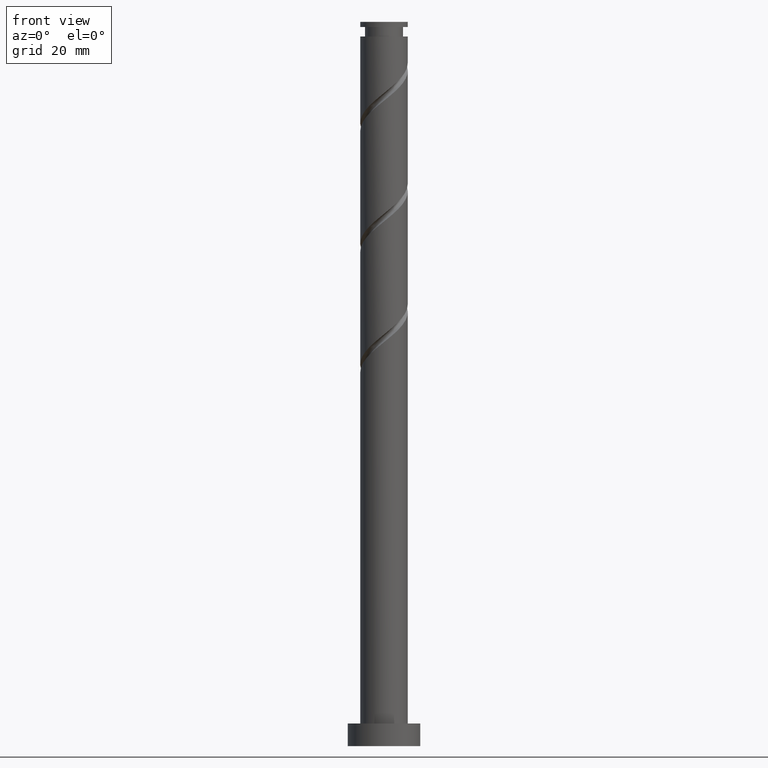
[diagram: clean part render]
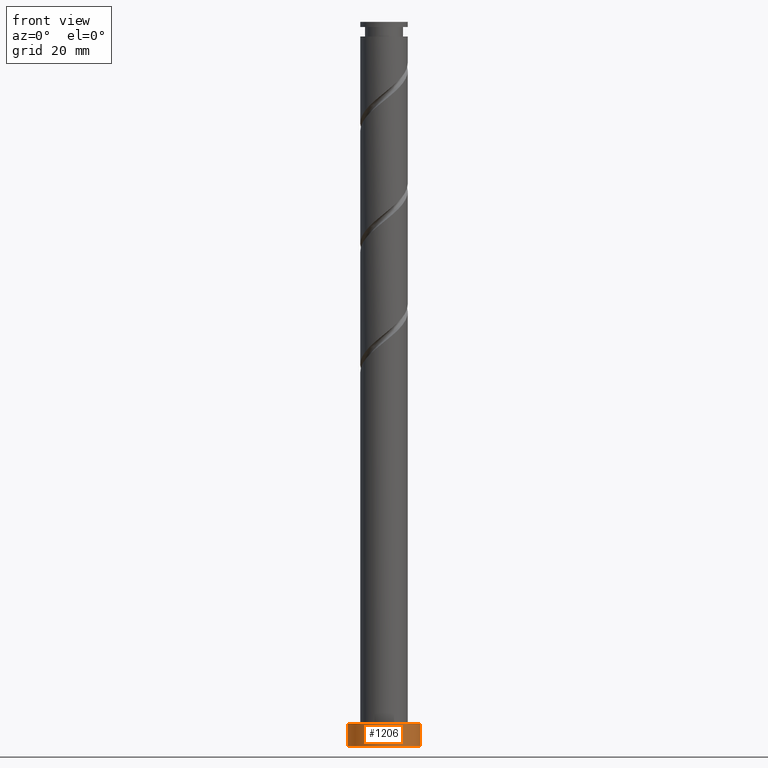
[diagram: same view with one face highlighted and labeled with its STEP entity id]
A machine part, front view. The second image highlights one B-rep face of the part: STEP entity #1206.
In plain terms, the highlighted cylindrical surface (edge-blend (fillet) strip) has radius 8 mm, axis along (-0, -0, -1).
Its self-contained STEP definition (entity closure, byte-faithful):
#36 = VERTEX_POINT ( 'NONE', #1400 ) ;
#121 = DIRECTION ( 'NONE',  ( -1.000000000000000000, 0.000000000000000000, 0.000000000000000000 ) ) ;
#123 = VERTEX_POINT ( 'NONE', #1104 ) ;
#156 = EDGE_CURVE ( 'NONE', #123, #1064, #400, .T. ) ;
#180 = CARTESIAN_POINT ( 'NONE',  ( 8.000000000000000000, 9.797174393178825657E-16, 5.000000000000000000 ) ) ;
#192 = DIRECTION ( 'NONE',  ( 0.000000000000000000, 0.000000000000000000, 1.000000000000000000 ) ) ;
#228 = DIRECTION ( 'NONE',  ( -0.000000000000000000, -0.000000000000000000, -1.000000000000000000 ) ) ;
#244 = FACE_OUTER_BOUND ( 'NONE', #472, .T. ) ;
#303 = ORIENTED_EDGE ( 'NONE', *, *, #850, .F. ) ;
#361 = CYLINDRICAL_SURFACE ( 'NONE', #1541, 8.000000000000000000 ) ;
#400 = CIRCLE ( 'NONE', #612, 8.000000000000000000 ) ;
#458 = VECTOR ( 'NONE', #678, 1000.000000000000000 ) ;
#472 = EDGE_LOOP ( 'NONE', ( #303, #1317, #1018, #806 ) ) ;
#489 = DIRECTION ( 'NONE',  ( -0.000000000000000000, -0.000000000000000000, -1.000000000000000000 ) ) ;
#562 = AXIS2_PLACEMENT_3D ( 'NONE', #1394, #1640, #1659 ) ;
#612 = AXIS2_PLACEMENT_3D ( 'NONE', #1323, #192, #1196 ) ;
#678 = DIRECTION ( 'NONE',  ( -0.000000000000000000, -0.000000000000000000, -1.000000000000000000 ) ) ;
#722 = CARTESIAN_POINT ( 'NONE',  ( -8.000000000000000000, 0.000000000000000000, 5.000000000000000000 ) ) ;
#806 = ORIENTED_EDGE ( 'NONE', *, *, #1209, .T. ) ;
#848 = VECTOR ( 'NONE', #228, 1000.000000000000000 ) ;
#850 = EDGE_CURVE ( 'NONE', #1064, #36, #1586, .T. ) ;
#989 = CARTESIAN_POINT ( 'NONE',  ( 8.000000000000000000, 9.797174393178825657E-16, 5.000000000000000000 ) ) ;
#1018 = ORIENTED_EDGE ( 'NONE', *, *, #1113, .T. ) ;
#1064 = VERTEX_POINT ( 'NONE', #989 ) ;
#1104 = CARTESIAN_POINT ( 'NONE',  ( -8.000000000000000000, 0.000000000000000000, 5.000000000000000000 ) ) ;
#1113 = EDGE_CURVE ( 'NONE', #123, #1294, #1486, .T. ) ;
#1196 = DIRECTION ( 'NONE',  ( 1.000000000000000000, 0.000000000000000000, 0.000000000000000000 ) ) ;
#1206 = ADVANCED_FACE ( 'NONE', ( #244 ), #361, .T. ) ;
#1209 = EDGE_CURVE ( 'NONE', #1294, #36, #1595, .T. ) ;
#1253 = CARTESIAN_POINT ( 'NONE',  ( -8.000000000000000000, 0.000000000000000000, 0.000000000000000000 ) ) ;
#1294 = VERTEX_POINT ( 'NONE', #1253 ) ;
#1317 = ORIENTED_EDGE ( 'NONE', *, *, #156, .F. ) ;
#1323 = CARTESIAN_POINT ( 'NONE',  ( 0.000000000000000000, 0.000000000000000000, 5.000000000000000000 ) ) ;
#1394 = CARTESIAN_POINT ( 'NONE',  ( 0.000000000000000000, 0.000000000000000000, 0.000000000000000000 ) ) ;
#1400 = CARTESIAN_POINT ( 'NONE',  ( 8.000000000000000000, 9.797174393178825657E-16, 0.000000000000000000 ) ) ;
#1486 = LINE ( 'NONE', #722, #848 ) ;
#1520 = CARTESIAN_POINT ( 'NONE',  ( 0.000000000000000000, 0.000000000000000000, 5.000000000000000000 ) ) ;
#1541 = AXIS2_PLACEMENT_3D ( 'NONE', #1520, #489, #121 ) ;
#1586 = LINE ( 'NONE', #180, #458 ) ;
#1595 = CIRCLE ( 'NONE', #562, 8.000000000000000000 ) ;
#1640 = DIRECTION ( 'NONE',  ( 0.000000000000000000, 0.000000000000000000, 1.000000000000000000 ) ) ;
#1659 = DIRECTION ( 'NONE',  ( 1.000000000000000000, 0.000000000000000000, 0.000000000000000000 ) ) ;